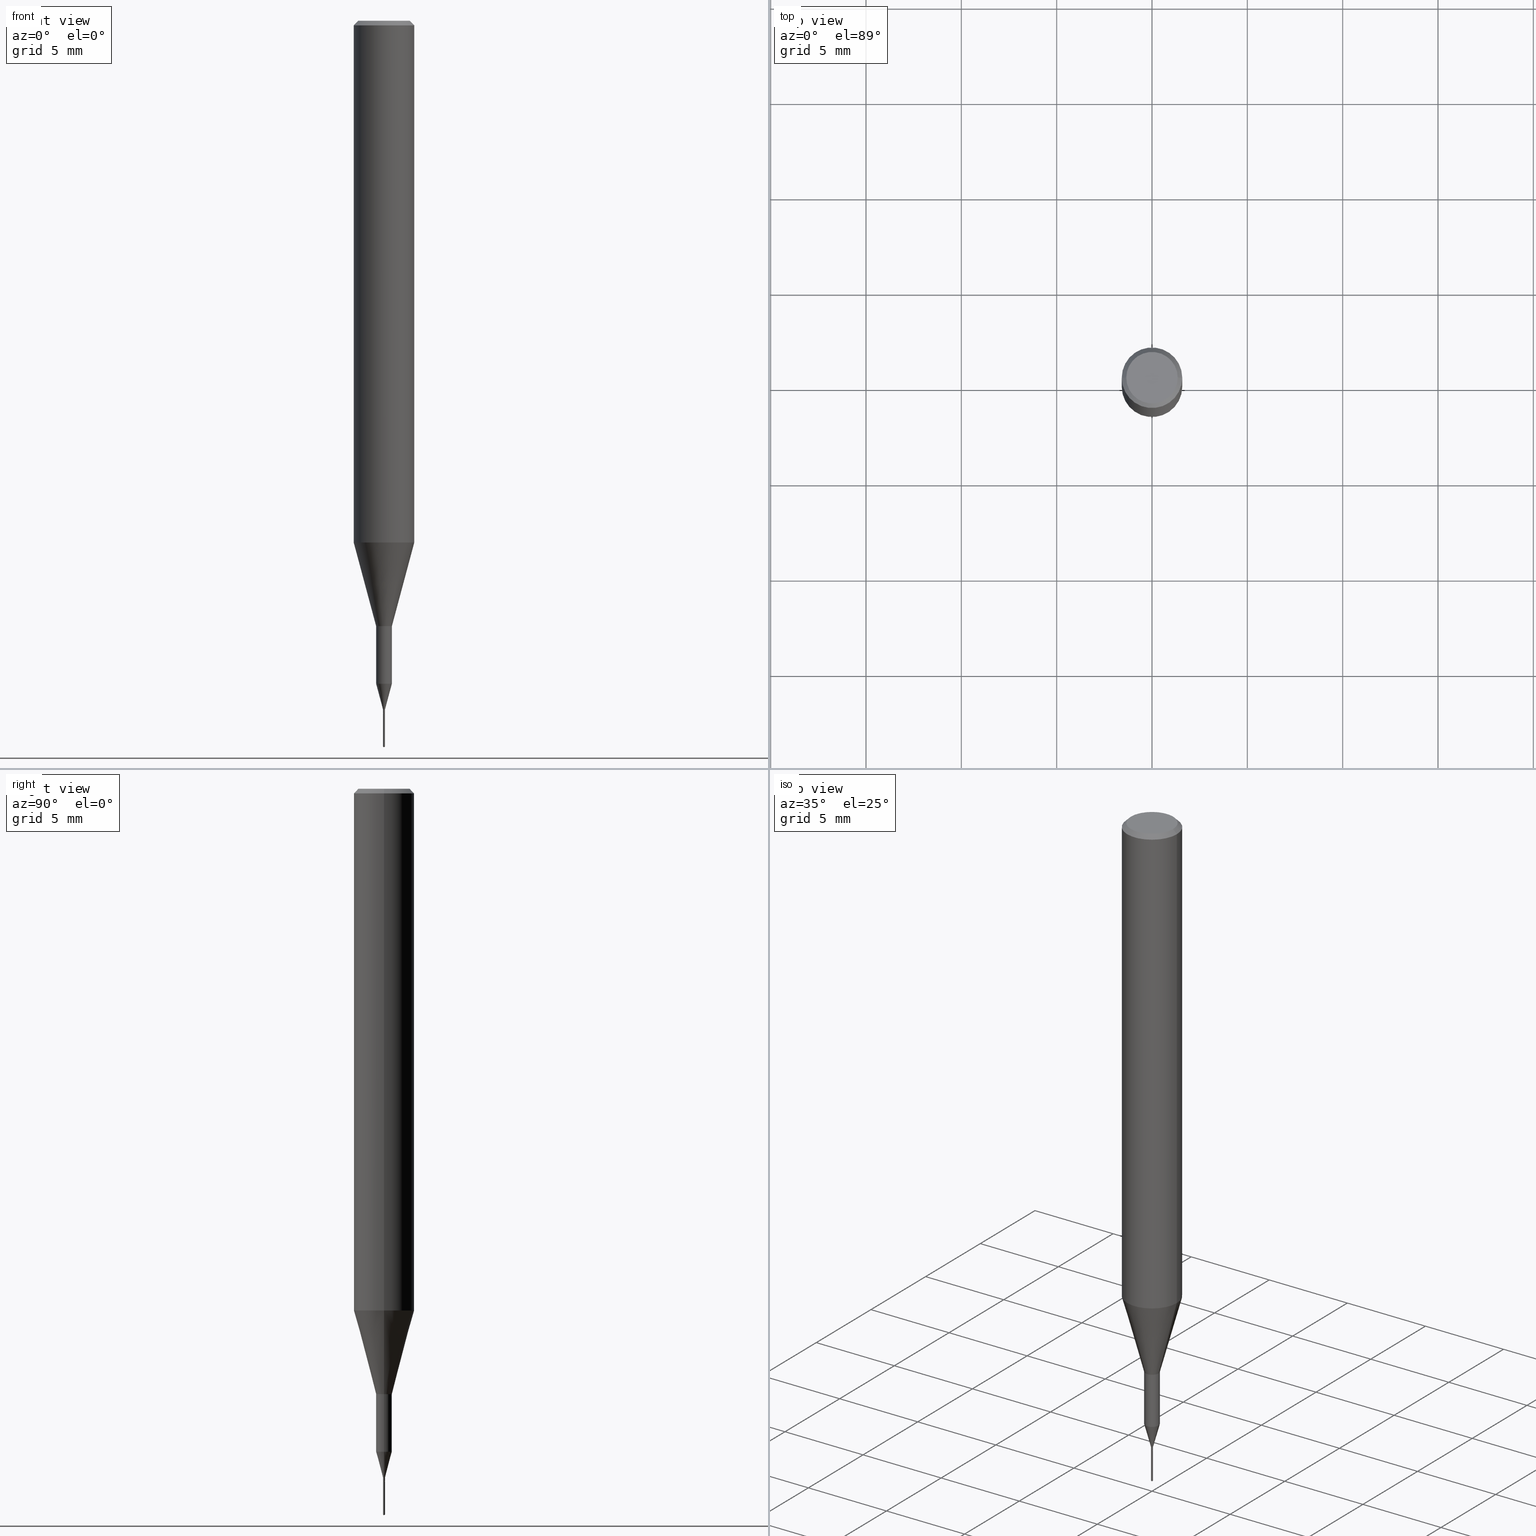
[diagram: canonical four-view strip — front | top / right | iso, engineering-drawing reading convention]
A machine part, canonical four-view strip (front | top / right | iso — engineering-drawing reading convention). The complete STEP part file that produces these views, byte-faithful:
ISO-10303-21;
HEADER;
FILE_DESCRIPTION (( 'STEP AP203' ),
    '1' );
FILE_NAME ('07089.STEP',
    '2024-04-19T13:29:48',
    ( '' ),
    ( '' ),
    'SwSTEP 2.0',
    'SolidWorks 2023',
    '' );
FILE_SCHEMA (( 'CONFIG_CONTROL_DESIGN' ));
ENDSEC;

DATA;
#1 = DIRECTION ( 'NONE',  ( -2.454811314498300339E-29, 3.478102335196144573E-15, 1.000000000000000000 ) ) ;
#2 = ORIENTED_EDGE ( 'NONE', *, *, #450, .T. ) ;
#3 = PRODUCT_DEFINITION_SHAPE ( 'NONE', 'NONE',  #389 ) ;
#4 = DIRECTION ( 'NONE',  ( -2.438088387897960049E-29, 3.491481338843145188E-15, 1.000000000000000000 ) ) ;
#5 = CC_DESIGN_PERSON_AND_ORGANIZATION_ASSIGNMENT ( #254, #439, ( #141 ) ) ;
#6 = AXIS2_PLACEMENT_3D ( 'NONE', #244, #431, #204 ) ;
#7 =( LENGTH_UNIT ( ) NAMED_UNIT ( * ) SI_UNIT ( $, .METRE. ) );
#8 = CARTESIAN_POINT ( 'NONE',  ( -0.06250000000000012490, -3.317607122755211895E-15, -1.077392650149939346 ) ) ;
#9 = DIRECTION ( 'NONE',  ( 1.000000000000000000, -6.982962677686264344E-15, 0.000000000000000000 ) ) ;
#10 = CARTESIAN_POINT ( 'NONE',  ( 0.06250000000000000000, -4.615137624123753937E-16, -0.009375000000000062103 ) ) ;
#11 = DIRECTION ( 'NONE',  ( 1.000000000000000000, -6.982962677686264344E-15, 0.000000000000000000 ) ) ;
#12 = EDGE_LOOP ( 'NONE', ( #330, #466, #83, #78 ) ) ;
#13 = CALENDAR_DATE ( 2024, 19, 4 ) ;
#14 = FACE_OUTER_BOUND ( 'NONE', #38, .T. ) ;
#15 = ORIENTED_EDGE ( 'NONE', *, *, #85, .T. ) ;
#16 = DIRECTION ( 'NONE',  ( -2.454811314498300339E-29, 3.478102335196144573E-15, 1.000000000000000000 ) ) ;
#17 = CARTESIAN_POINT ( 'NONE',  ( -0.001500000000000000248, -4.979510946335185892E-15, -1.429999999999999938 ) ) ;
#18 = ADVANCED_FACE ( 'NONE', ( #14 ), #345, .T. ) ;
#19 = CARTESIAN_POINT ( 'NONE',  ( 0.000000000000000000, 0.000000000000000000, 0.000000000000000000 ) ) ;
#20 = SHAPE_DEFINITION_REPRESENTATION ( #3, #574 ) ;
#21 = AXIS2_PLACEMENT_3D ( 'NONE', #155, #587, #548 ) ;
#22 = DIRECTION ( 'NONE',  ( -2.454811314498300339E-29, 3.478102335196144573E-15, 1.000000000000000000 ) ) ;
#23 = CC_DESIGN_PERSON_AND_ORGANIZATION_ASSIGNMENT ( #299, #482, ( #253 ) ) ;
#24 = VERTEX_POINT ( 'NONE', #202 ) ;
#25 = CIRCLE ( 'NONE', #201, 0.001999999999999996572 ) ;
#26 = FACE_OUTER_BOUND ( 'NONE', #220, .T. ) ;
#27 = EDGE_CURVE ( 'NONE', #487, #317, #205, .T. ) ;
#28 = EDGE_CURVE ( 'NONE', #24, #549, #569, .T. ) ;
#29 = LOCAL_TIME ( 9, 29, 48.00000000000000000, #116 ) ;
#30 = LINE ( 'NONE', #564, #223 ) ;
#31 = ORIENTED_EDGE ( 'NONE', *, *, #585, .F. ) ;
#32 = ORIENTED_EDGE ( 'NONE', *, *, #397, .T. ) ;
#33 = ORIENTED_EDGE ( 'NONE', *, *, #222, .T. ) ;
#34 = AXIS2_PLACEMENT_3D ( 'NONE', #480, #66, #560 ) ;
#35 = DIRECTION ( 'NONE',  ( -2.445468806185136597E-29, 3.491481338843145583E-15, 1.000000000000000000 ) ) ;
#36 = EDGE_LOOP ( 'NONE', ( #142, #250, #2, #350 ) ) ;
#37 = ADVANCED_FACE ( 'NONE', ( #53 ), #110, .T. ) ;
#38 = EDGE_LOOP ( 'NONE', ( #409, #33, #165, #256 ) ) ;
#39 = MANIFOLD_SOLID_BREP ( 'Body-Move/Copy2[2]', #232 ) ;
#40 = AXIS2_PLACEMENT_3D ( 'NONE', #43, #462, #581 ) ;
#41 = ORIENTED_EDGE ( 'NONE', *, *, #64, .F. ) ;
#42 = CIRCLE ( 'NONE', #100, 0.06250000000000000000 ) ;
#43 = CARTESIAN_POINT ( 'NONE',  ( 0.000000000000000000, 0.000000000000000000, 0.000000000000000000 ) ) ;
#44 = CARTESIAN_POINT ( 'NONE',  ( 2.634730117954813298E-29, -3.761696332605275695E-15, -1.077392650149939346 ) ) ;
#45 = DIRECTION ( 'NONE',  ( -6.982962677686266711E-15, -1.000000000000000000, 0.000000000000000000 ) ) ;
#46 = EDGE_CURVE ( 'NONE', #228, #395, #358, .T. ) ;
#47 = AXIS2_PLACEMENT_3D ( 'NONE', #309, #35, #268 ) ;
#48 = ORIENTED_EDGE ( 'NONE', *, *, #266, .F. ) ;
#49 = CYLINDRICAL_SURFACE ( 'NONE', #238, 0.01624999999999999709 ) ;
#50 = DIRECTION ( 'NONE',  ( -2.445468806185136597E-29, 3.491481338843145583E-15, 1.000000000000000000 ) ) ;
#51 = CIRCLE ( 'NONE', #399, 0.01624999999999999709 ) ;
#52 = CARTESIAN_POINT ( 'NONE',  ( 3.347402395274904675E-29, -4.779203466894016579E-15, -1.368818275992143674 ) ) ;
#53 = FACE_OUTER_BOUND ( 'NONE', #130, .T. ) ;
#54 = CARTESIAN_POINT ( 'NONE',  ( 3.056836007731421306E-29, -4.364351673553932471E-15, -1.250000000000000000 ) ) ;
#55 = APPROVAL ( #270, 'UNSPECIFIED' ) ;
#56 = DIRECTION ( 'NONE',  ( 1.000000000000000000, -6.982962677686264344E-15, 0.000000000000000000 ) ) ;
#57 = DIRECTION ( 'NONE',  ( 2.445468806185136597E-29, -3.491481338843145583E-15, -1.000000000000000000 ) ) ;
#58 = CARTESIAN_POINT ( 'NONE',  ( 2.634730117954813298E-29, -3.761696332605275695E-15, -1.077392650149939346 ) ) ;
#59 = MECHANICAL_CONTEXT ( 'NONE', #307, 'mechanical' ) ;
#60 = ORIENTED_EDGE ( 'NONE', *, *, #356, .T. ) ;
#61 = DIRECTION ( 'NONE',  ( 1.000000000000000000, -6.982962677686007964E-15, 0.000000000000000000 ) ) ;
#62 = CARTESIAN_POINT ( 'NONE',  ( 3.497020392844745759E-29, -4.992818314545698211E-15, -1.429999999999999938 ) ) ;
#63 = CIRCLE ( 'NONE', #540, 0.002000000000000006113 ) ;
#64 = EDGE_CURVE ( 'NONE', #395, #317, #425, .T. ) ;
#65 = PERSON_AND_ORGANIZATION ( #323, #196 ) ;
#66 = DIRECTION ( 'NONE',  ( -2.445468806185136597E-29, 3.491481338843145583E-15, 1.000000000000000000 ) ) ;
#67 = DIRECTION ( 'NONE',  ( -2.445468806185136597E-29, 3.491481338843145583E-15, 1.000000000000000000 ) ) ;
#68 = ORIENTED_EDGE ( 'NONE', *, *, #585, .T. ) ;
#69 = CIRCLE ( 'NONE', #166, 0.01625000000000000056 ) ;
#70 = DIRECTION ( 'NONE',  ( 1.000000000000000000, -6.982962677686344808E-15, 0.000000000000000000 ) ) ;
#71 = SECURITY_CLASSIFICATION_LEVEL ( 'unclassified' ) ;
#72 = VECTOR ( 'NONE', #153, 39.37007874015748143 ) ;
#73 = AXIS2_PLACEMENT_3D ( 'NONE', #272, #129, #458 ) ;
#74 = PERSON_AND_ORGANIZATION ( #323, #196 ) ;
#75 = EDGE_CURVE ( 'NONE', #126, #383, #212, .T. ) ;
#76 = VECTOR ( 'NONE', #372, 39.37007874015748143 ) ;
#77 = EDGE_LOOP ( 'NONE', ( #68, #284, #226, #502 ) ) ;
#78 = ORIENTED_EDGE ( 'NONE', *, *, #356, .F. ) ;
#79 = ADVANCED_FACE ( 'NONE', ( #490 ), #444, .F. ) ;
#80 = PRODUCT ( '07089', '07089', '', ( #59 ) ) ;
#81 = ORIENTED_EDGE ( 'NONE', *, *, #125, .F. ) ;
#82 =( GEOMETRIC_REPRESENTATION_CONTEXT ( 3 ) GLOBAL_UNCERTAINTY_ASSIGNED_CONTEXT ( ( #382 ) ) GLOBAL_UNIT_ASSIGNED_CONTEXT ( ( #412, #318, #92 ) ) REPRESENTATION_CONTEXT ( 'NONE', 'WORKASPACE' ) );
#83 = ORIENTED_EDGE ( 'NONE', *, *, #570, .F. ) ;
#84 = AXIS2_PLACEMENT_3D ( 'NONE', #504, #95, #279 ) ;
#85 = EDGE_CURVE ( 'NONE', #24, #156, #30, .T. ) ;
#86 = DESIGN_CONTEXT ( 'detailed design', #468, 'design' ) ;
#87 = EDGE_LOOP ( 'NONE', ( #467, #234, #340, #500 ) ) ;
#88 = FACE_OUTER_BOUND ( 'NONE', #263, .T. ) ;
#89 = COORDINATED_UNIVERSAL_TIME_OFFSET ( 5, 0, .BEHIND. ) ;
#90 = CARTESIAN_POINT ( 'NONE',  ( 3.347402395274904675E-29, -4.779203466894016579E-15, -1.368818275992143674 ) ) ;
#91 = DIRECTION ( 'NONE',  ( -2.454811314498300339E-29, 3.478102335196144573E-15, 1.000000000000000000 ) ) ;
#92 =( NAMED_UNIT ( * ) SI_UNIT ( $, .STERADIAN. ) SOLID_ANGLE_UNIT ( ) );
#93 = EDGE_LOOP ( 'NONE', ( #580, #181 ) ) ;
#94 = CARTESIAN_POINT ( 'NONE',  ( -0.002000000000000006113, -4.963768664140413020E-15, -1.421999999999999709 ) ) ;
#95 = DIRECTION ( 'NONE',  ( -2.445468806185136597E-29, 3.491481338843145583E-15, 1.000000000000000000 ) ) ;
#96 = LOCAL_TIME ( 9, 29, 48.00000000000000000, #162 ) ;
#97 = DIRECTION ( 'NONE',  ( 1.000000000000000000, -6.982962677686266711E-15, 4.876176775795935232E-29 ) ) ;
#98 = DIRECTION ( 'NONE',  ( -2.445468806185136597E-29, 3.491481338843145583E-15, 1.000000000000000000 ) ) ;
#99 = CARTESIAN_POINT ( 'NONE',  ( 3.682216971747450929E-29, -5.217153502794216465E-15, -1.500000000000000222 ) ) ;
#100 = AXIS2_PLACEMENT_3D ( 'NONE', #140, #554, #329 ) ;
#101 = CARTESIAN_POINT ( 'NONE',  ( 3.497020392844745759E-29, -4.992818314545698211E-15, -1.429999999999999938 ) ) ;
#102 = CARTESIAN_POINT ( 'NONE',  ( 3.497020392844745759E-29, -4.992818314545698211E-15, -1.429999999999999938 ) ) ;
#103 = DIRECTION ( 'NONE',  ( 0.000000000000000000, 0.000000000000000000, 1.000000000000000000 ) ) ;
#104 = DIRECTION ( 'NONE',  ( 1.000000000000000000, -6.982962677686311676E-15, 0.000000000000000000 ) ) ;
#105 = ORIENTED_EDGE ( 'NONE', *, *, #163, .F. ) ;
#106 = DIRECTION ( 'NONE',  ( -0.7071067811866161845, 7.493145998870601862E-15, 0.7071067811864788499 ) ) ;
#107 = CONICAL_SURFACE ( 'NONE', #376, 0.01625000000000000056, 0.2617993877991514617 ) ;
#108 = CARTESIAN_POINT ( 'NONE',  ( 0.06250000000000000000, -4.691678049070463404E-16, -0.009375000000000062103 ) ) ;
#109 = CC_DESIGN_DATE_AND_TIME_ASSIGNMENT ( #257, #486, ( #141 ) ) ;
#110 = CONICAL_SURFACE ( 'NONE', #274, 0.06250000000000012490, 0.2617993877991501295 ) ;
#111 = EDGE_CURVE ( 'NONE', #549, #362, #158, .T. ) ;
#112 = ORIENTED_EDGE ( 'NONE', *, *, #497, .T. ) ;
#113 = APPROVAL_STATUS ( 'not_yet_approved' ) ;
#114 = AXIS2_PLACEMENT_3D ( 'NONE', #185, #505, #104 ) ;
#115 = EDGE_CURVE ( 'NONE', #265, #126, #354, .T. ) ;
#116 = COORDINATED_UNIVERSAL_TIME_OFFSET ( 5, 0, .BEHIND. ) ;
#117 = CIRCLE ( 'NONE', #188, 0.001999999999999999174 ) ;
#118 = EDGE_CURVE ( 'NONE', #362, #156, #51, .T. ) ;
#119 = CARTESIAN_POINT ( 'NONE',  ( 1.421085471523696966E-17, 0.001999999999995006640, -1.429999999999999938 ) ) ;
#120 = DIRECTION ( 'NONE',  ( -2.454811314498300339E-29, 3.478102335196144573E-15, 1.000000000000000000 ) ) ;
#121 = ORIENTED_EDGE ( 'NONE', *, *, #154, .F. ) ;
#122 = DIRECTION ( 'NONE',  ( 1.000000000000000000, -6.982962677686288799E-15, 0.000000000000000000 ) ) ;
#123 = DATE_AND_TIME ( #528, #583 ) ;
#124 = AXIS2_PLACEMENT_3D ( 'NONE', #62, #435, #159 ) ;
#125 = EDGE_CURVE ( 'NONE', #228, #363, #258, .T. ) ;
#126 = VERTEX_POINT ( 'NONE', #481 ) ;
#127 = CONICAL_SURFACE ( 'NONE', #136, 0.06250000000000000000, 0.7853981633974453924 ) ;
#128 = ORIENTED_EDGE ( 'NONE', *, *, #578, .F. ) ;
#129 = DIRECTION ( 'NONE',  ( -2.445468806185136597E-29, 3.491481338843145583E-15, 1.000000000000000000 ) ) ;
#130 = EDGE_LOOP ( 'NONE', ( #251, #180, #128, #529 ) ) ;
#131 = ADVANCED_FACE ( 'NONE', ( #26 ), #252, .T. ) ;
#132 = DIRECTION ( 'NONE',  ( -2.445468806185136877E-29, 3.491481338843145188E-15, 1.000000000000000000 ) ) ;
#133 = CC_DESIGN_APPROVAL ( #230, ( #389 ) ) ;
#134 = VERTEX_POINT ( 'NONE', #281 ) ;
#135 = LINE ( 'NONE', #267, #537 ) ;
#136 = AXIS2_PLACEMENT_3D ( 'NONE', #227, #57, #283 ) ;
#137 = ORIENTED_EDGE ( 'NONE', *, *, #288, .F. ) ;
#138 = DIRECTION ( 'NONE',  ( -2.445468806185136597E-29, 3.491481338843145583E-15, 1.000000000000000000 ) ) ;
#139 = DIRECTION ( 'NONE',  ( 0.7071067811866161845, -2.468850131082976107E-15, 0.7071067811864788499 ) ) ;
#140 = CARTESIAN_POINT ( 'NONE',  ( 2.292627005798580623E-31, -3.273263755165470801E-17, -0.009375000000000062103 ) ) ;
#141 = SECURITY_CLASSIFICATION ( '', '', #71 ) ;
#142 = ORIENTED_EDGE ( 'NONE', *, *, #484, .F. ) ;
#143 = DIRECTION ( 'NONE',  ( -2.445468806185136597E-29, 3.491481338843145583E-15, 1.000000000000000000 ) ) ;
#144 = DIRECTION ( 'NONE',  ( 1.000000000000000000, -6.982962677686288799E-15, 0.000000000000000000 ) ) ;
#145 = CARTESIAN_POINT ( 'NONE',  ( -1.396592535533755903E-17, -0.002000000000004992576, -1.429999999999999938 ) ) ;
#146 = PERSON_AND_ORGANIZATION ( #323, #196 ) ;
#147 = AXIS2_PLACEMENT_3D ( 'NONE', #191, #542, #465 ) ;
#148 = VECTOR ( 'NONE', #275, 39.37007874015747433 ) ;
#149 = EDGE_LOOP ( 'NONE', ( #316, #280, #229 ) ) ;
#150 = LINE ( 'NONE', #411, #169 ) ;
#151 = DIRECTION ( 'NONE',  ( 1.000000000000000000, -6.982962677686265922E-15, 4.876176775795935793E-29 ) ) ;
#152 = APPROVAL_STATUS ( 'not_yet_approved' ) ;
#153 = DIRECTION ( 'NONE',  ( 0.7071067811865454633, -7.319954787623248157E-15, -0.7071067811865495711 ) ) ;
#154 = EDGE_CURVE ( 'NONE', #544, #126, #429, .T. ) ;
#155 = CARTESIAN_POINT ( 'NONE',  ( 0.000000000000000000, 0.000000000000000000, 0.000000000000000000 ) ) ;
#156 = VERTEX_POINT ( 'NONE', #415 ) ;
#157 = CARTESIAN_POINT ( 'NONE',  ( 0.05312499999999999861, -4.129888592719939842E-16, -5.787680772767651417E-18 ) ) ;
#158 = LINE ( 'NONE', #398, #320 ) ;
#159 = DIRECTION ( 'NONE',  ( -6.982962677686265133E-15, -1.000000000000000000, 0.000000000000000000 ) ) ;
#160 = ORIENTED_EDGE ( 'NONE', *, *, #179, .T. ) ;
#161 = CIRCLE ( 'NONE', #313, 0.01624999999999999709 ) ;
#162 = COORDINATED_UNIVERSAL_TIME_OFFSET ( 5, 0, .BEHIND. ) ;
#163 = EDGE_CURVE ( 'NONE', #392, #246, #292, .T. ) ;
#164 = ORIENTED_EDGE ( 'NONE', *, *, #452, .T. ) ;
#165 = ORIENTED_EDGE ( 'NONE', *, *, #432, .T. ) ;
#166 = AXIS2_PLACEMENT_3D ( 'NONE', #90, #328, #334 ) ;
#167 = DIRECTION ( 'NONE',  ( 2.454811314498300058E-29, -3.478102335196144573E-15, -1.000000000000000000 ) ) ;
#168 = CARTESIAN_POINT ( 'NONE',  ( 3.497020392844745759E-29, -4.992818314545698211E-15, -1.429999999999999938 ) ) ;
#169 = VECTOR ( 'NONE', #368, 39.37007874015748143 ) ;
#170 = DIRECTION ( 'NONE',  ( 6.090539988449920430E-15, 0.8571673007021338719, 0.5150380749100181843 ) ) ;
#171 = DIRECTION ( 'NONE',  ( -6.982962677686265133E-15, -1.000000000000000000, 0.000000000000000000 ) ) ;
#172 = ADVANCED_FACE ( 'NONE', ( #335 ), #127, .T. ) ;
#173 = EDGE_CURVE ( 'NONE', #156, #134, #584, .T. ) ;
#174 = ORIENTED_EDGE ( 'NONE', *, *, #222, .F. ) ;
#175 = APPROVAL_PERSON_ORGANIZATION ( #74, #55, #499 ) ;
#176 = DIRECTION ( 'NONE',  ( 1.000000000000000000, -6.982962677686267499E-15, 4.876176775795936353E-29 ) ) ;
#177 = EDGE_LOOP ( 'NONE', ( #428, #295, #121 ) ) ;
#178 = CIRCLE ( 'NONE', #526, 0.001999999999999996572 ) ;
#179 = EDGE_CURVE ( 'NONE', #291, #366, #187, .T. ) ;
#180 = ORIENTED_EDGE ( 'NONE', *, *, #173, .T. ) ;
#181 = ORIENTED_EDGE ( 'NONE', *, *, #511, .T. ) ;
#182 = DIRECTION ( 'NONE',  ( -2.445468806185136597E-29, 3.491481338843145583E-15, 1.000000000000000000 ) ) ;
#183 = FACE_OUTER_BOUND ( 'NONE', #314, .T. ) ;
#184 = LOCAL_TIME ( 9, 29, 48.00000000000000000, #473 ) ;
#185 = CARTESIAN_POINT ( 'NONE',  ( 3.477456642395263738E-29, -4.964886463834952576E-15, -1.421999999999999709 ) ) ;
#186 = FACE_OUTER_BOUND ( 'NONE', #87, .T. ) ;
#187 = LINE ( 'NONE', #582, #76 ) ;
#188 = AXIS2_PLACEMENT_3D ( 'NONE', #471, #421, #507 ) ;
#189 = ADVANCED_FACE ( 'NONE', ( #589 ), #321, .F. ) ;
#190 = DIRECTION ( 'NONE',  ( 1.000000000000000000, -6.982962677686007964E-15, 0.000000000000000000 ) ) ;
#191 = CARTESIAN_POINT ( 'NONE',  ( 7.076796394983739835E-47, -1.010378970665454992E-32, -2.893840386385196200E-18 ) ) ;
#192 = ORIENTED_EDGE ( 'NONE', *, *, #111, .F. ) ;
#193 = DIRECTION ( 'NONE',  ( 1.000000000000000000, -6.982962677686258033E-15, 0.000000000000000000 ) ) ;
#194 = DIRECTION ( 'NONE',  ( -6.982962677686267499E-15, -1.000000000000000000, 3.468864327941292475E-15 ) ) ;
#195 = ORIENTED_EDGE ( 'NONE', *, *, #218, .F. ) ;
#196 = ORGANIZATION ( 'UNSPECIFIED', 'UNSPECIFIED', '' ) ;
#197 = LINE ( 'NONE', #145, #224 ) ;
#198 = DIRECTION ( 'NONE',  ( 1.000000000000000000, -6.982962677686344808E-15, 0.000000000000000000 ) ) ;
#199 = ORIENTED_EDGE ( 'NONE', *, *, #240, .T. ) ;
#200 = APPLICATION_PROTOCOL_DEFINITION ( 'international standard', 'config_control_design', 1994, #468 ) ;
#201 = AXIS2_PLACEMENT_3D ( 'NONE', #463, #50, #198 ) ;
#202 = CARTESIAN_POINT ( 'NONE',  ( -0.01625000000000000056, -4.663740272333000394E-15, -1.368818275992143674 ) ) ;
#203 = CC_DESIGN_PERSON_AND_ORGANIZATION_ASSIGNMENT ( #146, #513, ( #389 ) ) ;
#204 = DIRECTION ( 'NONE',  ( 1.000000000000000000, -6.982962677686266711E-15, 4.876176775795935232E-29 ) ) ;
#205 = LINE ( 'NONE', #339, #562 ) ;
#206 = LINE ( 'NONE', #387, #576 ) ;
#207 = COORDINATED_UNIVERSAL_TIME_OFFSET ( 5, 0, .BEHIND. ) ;
#208 = CARTESIAN_POINT ( 'NONE',  ( 2.634730117954813298E-29, -3.761696332605275695E-15, -1.077392650149939346 ) ) ;
#209 = DIRECTION ( 'NONE',  ( -6.982962677686266711E-15, -1.000000000000000000, 0.000000000000000000 ) ) ;
#210 = VECTOR ( 'NONE', #442, 39.37007874015748143 ) ;
#211 = DATE_TIME_ROLE ( 'creation_date' ) ;
#212 = LINE ( 'NONE', #119, #441 ) ;
#213 = APPROVAL_PERSON_ORGANIZATION ( #437, #394, #477 ) ;
#214 = ORIENTED_EDGE ( 'NONE', *, *, #269, .F. ) ;
#215 = DIRECTION ( 'NONE',  ( -2.445468806185136877E-29, 3.491481338843145188E-15, 1.000000000000000000 ) ) ;
#216 = CONICAL_SURFACE ( 'NONE', #520, 0.06250000000000000000, 0.7853981633974453924 ) ;
#217 = CC_DESIGN_DATE_AND_TIME_ASSIGNMENT ( #479, #211, ( #389 ) ) ;
#218 = EDGE_CURVE ( 'NONE', #392, #485, #417, .T. ) ;
#219 = CARTESIAN_POINT ( 'NONE',  ( 0.001999999999999996572, -5.005038499231649525E-15, -1.429500000000000215 ) ) ;
#220 = EDGE_LOOP ( 'NONE', ( #496, #448, #378, #271 ) ) ;
#221 = ORIENTED_EDGE ( 'NONE', *, *, #111, .T. ) ;
#222 = EDGE_CURVE ( 'NONE', #156, #362, #161, .T. ) ;
#223 = VECTOR ( 'NONE', #215, 39.37007874015748143 ) ;
#224 = VECTOR ( 'NONE', #472, 39.37007874015748143 ) ;
#225 = CARTESIAN_POINT ( 'NONE',  ( 3.497020392844745759E-29, -4.992818314545698211E-15, -1.429999999999999938 ) ) ;
#226 = ORIENTED_EDGE ( 'NONE', *, *, #452, .F. ) ;
#227 = CARTESIAN_POINT ( 'NONE',  ( 2.292627005798580623E-31, -3.273263755165470801E-17, -0.009375000000000062103 ) ) ;
#228 = VERTEX_POINT ( 'NONE', #235 ) ;
#229 = ORIENTED_EDGE ( 'NONE', *, *, #240, .F. ) ;
#230 = APPROVAL ( #152, 'UNSPECIFIED' ) ;
#231 = CARTESIAN_POINT ( 'NONE',  ( -0.001500000000000000248, -4.982160173509296304E-15, -1.429999999999999938 ) ) ;
#232 = CLOSED_SHELL ( 'NONE', ( #172, #530, #37, #434, #543, #553, #408, #355, #535, #516, #565, #449, #18, #131, #278, #189 ) ) ;
#233 = CYLINDRICAL_SURFACE ( 'NONE', #491, 0.002000000000000001343 ) ;
#234 = ORIENTED_EDGE ( 'NONE', *, *, #163, .T. ) ;
#235 = CARTESIAN_POINT ( 'NONE',  ( -0.05312499999999999861, 3.873362110279099094E-16, -5.787680772773044021E-18 ) ) ;
#236 = EDGE_LOOP ( 'NONE', ( #577, #32, #416, #293 ) ) ;
#237 = CARTESIAN_POINT ( 'NONE',  ( 3.497020392844745759E-29, -4.992818314545698211E-15, -1.429999999999999938 ) ) ;
#238 = AXIS2_PLACEMENT_3D ( 'NONE', #367, #503, #176 ) ;
#239 = DIRECTION ( 'NONE',  ( -2.445468806185136597E-29, 3.491481338843145583E-15, 1.000000000000000000 ) ) ;
#240 = EDGE_CURVE ( 'NONE', #126, #544, #117, .T. ) ;
#241 = ORIENTED_EDGE ( 'NONE', *, *, #346, .F. ) ;
#242 = ADVANCED_FACE ( 'NONE', ( #476 ), #286, .T. ) ;
#243 = FACE_OUTER_BOUND ( 'NONE', #351, .T. ) ;
#244 = CARTESIAN_POINT ( 'NONE',  ( 0.000000000000000000, 0.000000000000000000, 0.000000000000000000 ) ) ;
#245 = EDGE_LOOP ( 'NONE', ( #164, #15, #420, #192 ) ) ;
#246 = VERTEX_POINT ( 'NONE', #424 ) ;
#247 = CARTESIAN_POINT ( 'NONE',  ( -1.396592535533756211E-17, -0.002000000000004993009, -1.429999999999999938 ) ) ;
#248 = LINE ( 'NONE', #303, #461 ) ;
#249 = DIRECTION ( 'NONE',  ( -5.985567269336080119E-15, -0.8571673007021302082, 0.5150380749100241795 ) ) ;
#250 = ORIENTED_EDGE ( 'NONE', *, *, #288, .T. ) ;
#251 = ORIENTED_EDGE ( 'NONE', *, *, #118, .T. ) ;
#252 = CYLINDRICAL_SURFACE ( 'NONE', #84, 0.06250000000000006939 ) ;
#253 = PRODUCT_DEFINITION_FORMATION_WITH_SPECIFIED_SOURCE ( 'ANY', '', #80, .NOT_KNOWN. ) ;
#254 = PERSON_AND_ORGANIZATION ( #323, #196 ) ;
#255 = CONICAL_SURFACE ( 'NONE', #370, 65.52281426577413015, 1.029744258676692947 ) ;
#256 = ORIENTED_EDGE ( 'NONE', *, *, #369, .F. ) ;
#257 = DATE_AND_TIME ( #302, #29 ) ;
#258 = LINE ( 'NONE', #298, #210 ) ;
#259 = CYLINDRICAL_SURFACE ( 'NONE', #558, 0.001999999999999999608 ) ;
#260 = ORIENTED_EDGE ( 'NONE', *, *, #511, .F. ) ;
#261 = EDGE_CURVE ( 'NONE', #291, #246, #25, .T. ) ;
#262 = LOCAL_TIME ( 9, 29, 48.00000000000000000, #207 ) ;
#263 = EDGE_LOOP ( 'NONE', ( #319, #515, #31, #534 ) ) ;
#264 = EDGE_CURVE ( 'NONE', #363, #317, #42, .T. ) ;
#265 = VERTEX_POINT ( 'NONE', #99 ) ;
#266 = EDGE_CURVE ( 'NONE', #246, #406, #150, .T. ) ;
#267 = CARTESIAN_POINT ( 'NONE',  ( 0.01625000000000000056, -4.892676610406418256E-15, -1.368818275992143674 ) ) ;
#268 = DIRECTION ( 'NONE',  ( 1.000000000000000000, -6.982962677686266711E-15, 0.000000000000000000 ) ) ;
#269 = EDGE_CURVE ( 'NONE', #246, #291, #178, .T. ) ;
#270 = APPROVAL_STATUS ( 'not_yet_approved' ) ;
#271 = ORIENTED_EDGE ( 'NONE', *, *, #264, .F. ) ;
#272 = CARTESIAN_POINT ( 'NONE',  ( 3.497020392844745759E-29, -4.992818314545698211E-15, -1.429999999999999938 ) ) ;
#273 = ORIENTED_EDGE ( 'NONE', *, *, #85, .F. ) ;
#274 = AXIS2_PLACEMENT_3D ( 'NONE', #338, #551, #290 ) ;
#275 = DIRECTION ( 'NONE',  ( 0.2588190451025214611, 1.565188264969621573E-15, 0.9659258262890682012 ) ) ;
#276 = EDGE_LOOP ( 'NONE', ( #41, #401, #455, #523 ) ) ;
#277 = EDGE_LOOP ( 'NONE', ( #451, #483 ) ) ;
#278 = ADVANCED_FACE ( 'NONE', ( #310 ), #216, .T. ) ;
#279 = DIRECTION ( 'NONE',  ( 1.000000000000000000, -6.982962677686266711E-15, 4.876176775795935793E-29 ) ) ;
#280 = ORIENTED_EDGE ( 'NONE', *, *, #324, .T. ) ;
#281 = CARTESIAN_POINT ( 'NONE',  ( -0.06250000000000012490, -3.317607122755211895E-15, -1.077392650149939346 ) ) ;
#282 = CIRCLE ( 'NONE', #573, 0.05312499999999999861 ) ;
#283 = DIRECTION ( 'NONE',  ( -1.000000000000000000, 6.982962677686266711E-15, 0.000000000000000000 ) ) ;
#284 = ORIENTED_EDGE ( 'NONE', *, *, #484, .T. ) ;
#285 = DIRECTION ( 'NONE',  ( -2.445468806185136597E-29, 3.491481338843145583E-15, 1.000000000000000000 ) ) ;
#286 = CONICAL_SURFACE ( 'NONE', #552, 65.52281426577413015, 1.029744258676692947 ) ;
#287 = DIRECTION ( 'NONE',  ( -2.454811314498300339E-29, 3.478102335196144573E-15, 1.000000000000000000 ) ) ;
#288 = EDGE_CURVE ( 'NONE', #406, #366, #63, .T. ) ;
#289 = CARTESIAN_POINT ( 'NONE',  ( -0.06250000000000000000, -1.453125275228401137E-15, -0.009375000000000062103 ) ) ;
#290 = DIRECTION ( 'NONE',  ( 1.000000000000000000, -6.982962677686264344E-15, 0.000000000000000000 ) ) ;
#291 = VERTEX_POINT ( 'NONE', #219 ) ;
#292 = LINE ( 'NONE', #231, #453 ) ;
#293 = ORIENTED_EDGE ( 'NONE', *, *, #27, .F. ) ;
#294 = APPROVAL_PERSON_ORGANIZATION ( #65, #230, #563 ) ;
#295 = ORIENTED_EDGE ( 'NONE', *, *, #115, .T. ) ;
#296 = CYLINDRICAL_SURFACE ( 'NONE', #124, 0.001999999999999999608 ) ;
#297 = DIRECTION ( 'NONE',  ( -6.982962677686267499E-15, -1.000000000000000000, 3.468864327941292475E-15 ) ) ;
#298 = CARTESIAN_POINT ( 'NONE',  ( -0.06250000000000000000, 4.037025298037369984E-16, -0.009375000000000062103 ) ) ;
#299 = PERSON_AND_ORGANIZATION ( #323, #196 ) ;
#300 = DIRECTION ( 'NONE',  ( -2.454811314498300619E-29, 3.478102335196144573E-15, 1.000000000000000000 ) ) ;
#301 = EDGE_LOOP ( 'NONE', ( #568, #199, #60, #536 ) ) ;
#302 = CALENDAR_DATE ( 2024, 19, 4 ) ;
#303 = CARTESIAN_POINT ( 'NONE',  ( -0.01625000000000000056, -4.663740272333000394E-15, -1.368818275992143674 ) ) ;
#304 = AXIS2_PLACEMENT_3D ( 'NONE', #225, #138, #325 ) ;
#305 = CIRCLE ( 'NONE', #489, 0.06250000000000012490 ) ;
#306 = CC_DESIGN_PERSON_AND_ORGANIZATION_ASSIGNMENT ( #381, #393, ( #80 ) ) ;
#307 = APPLICATION_CONTEXT ( 'configuration controlled 3d designs of mechanical parts and assemblies' ) ;
#308 = CARTESIAN_POINT ( 'NONE',  ( 3.497020392844745759E-29, -4.992818314545698211E-15, -1.429999999999999938 ) ) ;
#309 = CARTESIAN_POINT ( 'NONE',  ( 2.292627005798580623E-31, -3.273263755165470801E-17, -0.009375000000000062103 ) ) ;
#310 = FACE_OUTER_BOUND ( 'NONE', #276, .T. ) ;
#311 = CALENDAR_DATE ( 2024, 19, 4 ) ;
#312 = DIRECTION ( 'NONE',  ( 1.000000000000000000, -6.982962677686311676E-15, 0.000000000000000000 ) ) ;
#313 = AXIS2_PLACEMENT_3D ( 'NONE', #54, #374, #144 ) ;
#314 = EDGE_LOOP ( 'NONE', ( #273, #460, #221, #174 ) ) ;
#315 = LINE ( 'NONE', #371, #148 ) ;
#316 = ORIENTED_EDGE ( 'NONE', *, *, #115, .F. ) ;
#317 = VERTEX_POINT ( 'NONE', #108 ) ;
#318 =( NAMED_UNIT ( * ) PLANE_ANGLE_UNIT ( ) SI_UNIT ( $, .RADIAN. ) );
#319 = ORIENTED_EDGE ( 'NONE', *, *, #261, .T. ) ;
#320 = VECTOR ( 'NONE', #571, 39.37007874015748143 ) ;
#321 = PLANE ( 'NONE',  #147 ) ;
#322 = ADVANCED_FACE ( 'NONE', ( #400 ), #255, .T. ) ;
#323 = PERSON ( 'UNSPECIFIED', 'UNSPECIFIED', 'UNSPECIFIED', ('UNSPECIFIED'), ('UNSPECIFIED'), ('UNSPECIFIED') ) ;
#324 = EDGE_CURVE ( 'NONE', #265, #544, #206, .T. ) ;
#325 = DIRECTION ( 'NONE',  ( 1.000000000000000000, -6.982962677686007964E-15, 0.000000000000000000 ) ) ;
#326 = FACE_OUTER_BOUND ( 'NONE', #36, .T. ) ;
#327 = CONICAL_SURFACE ( 'NONE', #532, 0.01625000000000000056, 0.2617993877991514617 ) ;
#328 = DIRECTION ( 'NONE',  ( -2.445468806185136597E-29, 3.491481338843145583E-15, 1.000000000000000000 ) ) ;
#329 = DIRECTION ( 'NONE',  ( 1.000000000000000000, -6.982962677686266711E-15, 0.000000000000000000 ) ) ;
#330 = ORIENTED_EDGE ( 'NONE', *, *, #154, .T. ) ;
#331 = CARTESIAN_POINT ( 'NONE',  ( 0.01624999999999999709, -4.477824817066334148E-15, -1.250000000000000000 ) ) ;
#332 = CIRCLE ( 'NONE', #575, 0.001500000000000000248 ) ;
#333 = CARTESIAN_POINT ( 'NONE',  ( -1.396592535533586729E-17, -0.002000000000005231100, -1.498798278761945157 ) ) ;
#334 = DIRECTION ( 'NONE',  ( 1.000000000000000000, -6.982962677686258033E-15, 0.000000000000000000 ) ) ;
#335 = FACE_OUTER_BOUND ( 'NONE', #377, .T. ) ;
#336 = CARTESIAN_POINT ( 'NONE',  ( 1.421085471523866756E-17, 0.001999999999995007507, -1.429999999999999938 ) ) ;
#337 = FACE_OUTER_BOUND ( 'NONE', #301, .T. ) ;
#338 = CARTESIAN_POINT ( 'NONE',  ( 2.634730117954813298E-29, -3.761696332605275695E-15, -1.077392650149939346 ) ) ;
#339 = CARTESIAN_POINT ( 'NONE',  ( 0.06250000000000006939, -4.364351673553921624E-16, 3.047610484872463374E-30 ) ) ;
#340 = ORIENTED_EDGE ( 'NONE', *, *, #261, .F. ) ;
#341 = APPROVAL_DATE_TIME ( #559, #394 ) ;
#342 = LINE ( 'NONE', #521, #454 ) ;
#343 = DIRECTION ( 'NONE',  ( 1.000000000000000000, 0.000000000000000000, 0.000000000000000000 ) ) ;
#344 = CARTESIAN_POINT ( 'NONE',  ( 3.682451270869537857E-29, -5.217153502794216465E-15, -1.500000000000000222 ) ) ;
#345 = CONICAL_SURFACE ( 'NONE', #533, 0.06250000000000012490, 0.2617993877991501295 ) ;
#346 = EDGE_CURVE ( 'NONE', #485, #392, #332, .T. ) ;
#347 = CARTESIAN_POINT ( 'NONE',  ( 1.415359278996747967E-46, -2.020757941330909984E-32, -5.787680772770392401E-18 ) ) ;
#348 = DIRECTION ( 'NONE',  ( -2.445468806185136597E-29, 3.491481338843145583E-15, 1.000000000000000000 ) ) ;
#349 = DATE_AND_TIME ( #517, #96 ) ;
#350 = ORIENTED_EDGE ( 'NONE', *, *, #28, .F. ) ;
#351 = EDGE_LOOP ( 'NONE', ( #241, #195 ) ) ;
#352 = PERSON_AND_ORGANIZATION ( #323, #196 ) ;
#353 = CIRCLE ( 'NONE', #390, 0.002000000000000000042 ) ;
#354 = LINE ( 'NONE', #344, #379 ) ;
#355 = ADVANCED_FACE ( 'NONE', ( #243 ), #422, .F. ) ;
#356 = EDGE_CURVE ( 'NONE', #544, #388, #197, .T. ) ;
#357 = CARTESIAN_POINT ( 'NONE',  ( 0.001500000000000000248, -5.003292758562227232E-15, -1.429999999999999938 ) ) ;
#358 = CIRCLE ( 'NONE', #34, 0.05312499999999999861 ) ;
#359 = DIRECTION ( 'NONE',  ( -2.445468806185136597E-29, 3.491481338843145583E-15, 1.000000000000000000 ) ) ;
#360 = DIRECTION ( 'NONE',  ( -1.000000000000000000, 6.982962677686266711E-15, 0.000000000000000000 ) ) ;
#361 = DIRECTION ( 'NONE',  ( 0.2588190451025226824, 1.565188264969610726E-15, 0.9659258262890676461 ) ) ;
#362 = VERTEX_POINT ( 'NONE', #331 ) ;
#363 = VERTEX_POINT ( 'NONE', #289 ) ;
#364 = LENGTH_MEASURE_WITH_UNIT ( LENGTH_MEASURE( 0.02539999999999999897 ), #7 );
#365 = CONICAL_SURFACE ( 'NONE', #524, 0.001500000000000000248, 0.7853981633975454235 ) ;
#366 = VERTEX_POINT ( 'NONE', #430 ) ;
#367 = CARTESIAN_POINT ( 'NONE',  ( 0.000000000000000000, 0.000000000000000000, 0.000000000000000000 ) ) ;
#368 = DIRECTION ( 'NONE',  ( -2.445468806185136877E-29, 3.491481338843145188E-15, 1.000000000000000000 ) ) ;
#369 = EDGE_CURVE ( 'NONE', #134, #487, #305, .T. ) ;
#370 = AXIS2_PLACEMENT_3D ( 'NONE', #556, #16, #297 ) ;
#371 = CARTESIAN_POINT ( 'NONE',  ( 0.06250000000000012490, -4.198131499960668153E-15, -1.077392650149939346 ) ) ;
#372 = DIRECTION ( 'NONE',  ( -2.445468806185136877E-29, 3.491481338843145188E-15, 1.000000000000000000 ) ) ;
#373 = DIRECTION ( 'NONE',  ( 1.000000000000000000, -6.982962677686258033E-15, 0.000000000000000000 ) ) ;
#374 = DIRECTION ( 'NONE',  ( -2.445468806185136597E-29, 3.491481338843145583E-15, 1.000000000000000000 ) ) ;
#375 = LINE ( 'NONE', #590, #519 ) ;
#376 = AXIS2_PLACEMENT_3D ( 'NONE', #52, #474, #373 ) ;
#377 = EDGE_LOOP ( 'NONE', ( #260, #501, #112, #81 ) ) ;
#378 = ORIENTED_EDGE ( 'NONE', *, *, #27, .T. ) ;
#379 = VECTOR ( 'NONE', #170, 39.37007874015748854 ) ;
#380 = AXIS2_PLACEMENT_3D ( 'NONE', #102, #4, #151 ) ;
#381 = PERSON_AND_ORGANIZATION ( #323, #196 ) ;
#382 = UNCERTAINTY_MEASURE_WITH_UNIT (LENGTH_MEASURE( 1.000000000000000082E-05 ), #412, 'distance_accuracy_value', 'NONE');
#383 = VERTEX_POINT ( 'NONE', #336 ) ;
#384 = DIRECTION ( 'NONE',  ( 2.445468806185136597E-29, -3.491481338843145583E-15, -1.000000000000000000 ) ) ;
#385 = PERSON_AND_ORGANIZATION_ROLE ( 'design_supplier' ) ;
#386 = CYLINDRICAL_SURFACE ( 'NONE', #21, 0.06250000000000006939 ) ;
#387 = CARTESIAN_POINT ( 'NONE',  ( 3.655497397971803125E-29, -5.255417453224639518E-15, -1.500000000000000222 ) ) ;
#388 = VERTEX_POINT ( 'NONE', #247 ) ;
#389 = PRODUCT_DEFINITION ( 'UNKNOWN', '', #253, #86 ) ;
#390 = AXIS2_PLACEMENT_3D ( 'NONE', #101, #287, #579 ) ;
#391 = CARTESIAN_POINT ( 'NONE',  ( 3.497020392844745759E-29, -4.992818314545698211E-15, -1.429999999999999938 ) ) ;
#392 = VERTEX_POINT ( 'NONE', #17 ) ;
#393 = PERSON_AND_ORGANIZATION_ROLE ( 'design_owner' ) ;
#394 = APPROVAL ( #113, 'UNSPECIFIED' ) ;
#395 = VERTEX_POINT ( 'NONE', #157 ) ;
#396 = AXIS2_PLACEMENT_3D ( 'NONE', #19, #103, #343 ) ;
#397 = EDGE_CURVE ( 'NONE', #134, #363, #342, .T. ) ;
#398 = CARTESIAN_POINT ( 'NONE',  ( 0.01624999999999999709, -1.134731435124018242E-16, 7.923787260668394963E-31 ) ) ;
#399 = AXIS2_PLACEMENT_3D ( 'NONE', #525, #359, #122 ) ;
#400 = FACE_OUTER_BOUND ( 'NONE', #149, .T. ) ;
#401 = ORIENTED_EDGE ( 'NONE', *, *, #46, .F. ) ;
#402 = CC_DESIGN_PERSON_AND_ORGANIZATION_ASSIGNMENT ( #352, #385, ( #253 ) ) ;
#403 = FACE_OUTER_BOUND ( 'NONE', #12, .T. ) ;
#404 = CIRCLE ( 'NONE', #114, 0.002000000000000006113 ) ;
#405 = AXIS2_PLACEMENT_3D ( 'NONE', #512, #91, #45 ) ;
#406 = VERTEX_POINT ( 'NONE', #94 ) ;
#407 = CONICAL_SURFACE ( 'NONE', #73, 0.001500000000000000248, 0.7853981633975454235 ) ;
#408 = ADVANCED_FACE ( 'NONE', ( #186 ), #407, .T. ) ;
#409 = ORIENTED_EDGE ( 'NONE', *, *, #173, .F. ) ;
#410 = FACE_OUTER_BOUND ( 'NONE', #245, .T. ) ;
#411 = CARTESIAN_POINT ( 'NONE',  ( -0.002000000000000001343, 1.421085471520201326E-17, -9.837870180509817143E-32 ) ) ;
#412 =( CONVERSION_BASED_UNIT ( 'INCH', #364 ) LENGTH_UNIT ( ) NAMED_UNIT ( #495 ) );
#413 = EDGE_LOOP ( 'NONE', ( #105, #538, #506, #214 ) ) ;
#414 = CC_DESIGN_APPROVAL ( #55, ( #141 ) ) ;
#415 = CARTESIAN_POINT ( 'NONE',  ( -0.01624999999999999709, -4.456314375662958734E-15, -1.250000000000000000 ) ) ;
#416 = ORIENTED_EDGE ( 'NONE', *, *, #497, .F. ) ;
#417 = CIRCLE ( 'NONE', #304, 0.001500000000000000248 ) ;
#418 = DIRECTION ( 'NONE',  ( -0.2588190451025214611, 5.211531920934551042E-15, 0.9659258262890682012 ) ) ;
#419 = FACE_OUTER_BOUND ( 'NONE', #77, .T. ) ;
#420 = ORIENTED_EDGE ( 'NONE', *, *, #118, .F. ) ;
#421 = DIRECTION ( 'NONE',  ( -2.454811314498300339E-29, 3.478102335196144573E-15, 1.000000000000000000 ) ) ;
#422 = PLANE ( 'NONE',  #380 ) ;
#423 = APPLICATION_PROTOCOL_DEFINITION ( 'international standard', 'config_control_design', 1994, #307 ) ;
#424 = CARTESIAN_POINT ( 'NONE',  ( -0.001999999999999996572, -4.976861719161074691E-15, -1.429500000000000215 ) ) ;
#425 = LINE ( 'NONE', #10, #72 ) ;
#426 = DIRECTION ( 'NONE',  ( 1.000000000000000000, -6.982962677686266711E-15, 4.875930095424100059E-29 ) ) ;
#427 = DIRECTION ( 'NONE',  ( -2.445468806185136597E-29, 3.491481338843145583E-15, 1.000000000000000000 ) ) ;
#428 = ORIENTED_EDGE ( 'NONE', *, *, #324, .F. ) ;
#429 = CIRCLE ( 'NONE', #405, 0.001999999999999999174 ) ;
#430 = CARTESIAN_POINT ( 'NONE',  ( 0.002000000000000006113, -4.978852389190325393E-15, -1.421999999999999709 ) ) ;
#431 = DIRECTION ( 'NONE',  ( -2.445468806185136597E-29, 3.491481338843145583E-15, 1.000000000000000000 ) ) ;
#432 = EDGE_CURVE ( 'NONE', #362, #487, #315, .T. ) ;
#433 = CARTESIAN_POINT ( 'NONE',  ( 2.292627005798580623E-31, -3.273263755165470801E-17, -0.009375000000000062103 ) ) ;
#434 = ADVANCED_FACE ( 'NONE', ( #410 ), #456, .T. ) ;
#435 = DIRECTION ( 'NONE',  ( -2.454811314498300339E-29, 3.478102335196144573E-15, 1.000000000000000000 ) ) ;
#436 = DIRECTION ( 'NONE',  ( -2.445468806185136877E-29, 3.491481338843145188E-15, 1.000000000000000000 ) ) ;
#437 = PERSON_AND_ORGANIZATION ( #323, #196 ) ;
#438 = CC_DESIGN_SECURITY_CLASSIFICATION ( #141, ( #253 ) ) ;
#439 = PERSON_AND_ORGANIZATION_ROLE ( 'classification_officer' ) ;
#440 = DIRECTION ( 'NONE',  ( 6.982962677686265922E-15, 1.000000000000000000, -3.478102335196144573E-15 ) ) ;
#441 = VECTOR ( 'NONE', #300, 39.37007874015748143 ) ;
#442 = DIRECTION ( 'NONE',  ( -0.7071067811865454633, 2.468850131082235367E-15, -0.7071067811865495711 ) ) ;
#443 = AXIS2_PLACEMENT_3D ( 'NONE', #44, #469, #56 ) ;
#444 = PLANE ( 'NONE',  #586 ) ;
#445 = MANIFOLD_SOLID_BREP ( 'Body-Move/Copy2[1]', #488 ) ;
#446 = VECTOR ( 'NONE', #418, 39.37007874015747433 ) ;
#447 = CARTESIAN_POINT ( 'NONE',  ( 3.477456642395263738E-29, -4.964886463834952576E-15, -1.421999999999999709 ) ) ;
#448 = ORIENTED_EDGE ( 'NONE', *, *, #369, .T. ) ;
#449 = ADVANCED_FACE ( 'NONE', ( #183 ), #49, .T. ) ;
#450 = EDGE_CURVE ( 'NONE', #366, #549, #135, .T. ) ;
#451 = ORIENTED_EDGE ( 'NONE', *, *, #570, .T. ) ;
#452 = EDGE_CURVE ( 'NONE', #549, #24, #69, .T. ) ;
#453 = VECTOR ( 'NONE', #106, 39.37007874015748143 ) ;
#454 = VECTOR ( 'NONE', #132, 39.37007874015748143 ) ;
#455 = ORIENTED_EDGE ( 'NONE', *, *, #125, .T. ) ;
#456 = CYLINDRICAL_SURFACE ( 'NONE', #40, 0.01624999999999999709 ) ;
#457 = CARTESIAN_POINT ( 'NONE',  ( 0.01625000000000000056, -4.892676610406418256E-15, -1.368818275992143674 ) ) ;
#458 = DIRECTION ( 'NONE',  ( 1.000000000000000000, -6.982962677686007964E-15, 0.000000000000000000 ) ) ;
#459 = FACE_OUTER_BOUND ( 'NONE', #413, .T. ) ;
#460 = ORIENTED_EDGE ( 'NONE', *, *, #28, .T. ) ;
#461 = VECTOR ( 'NONE', #572, 39.37007874015748854 ) ;
#462 = DIRECTION ( 'NONE',  ( -2.445468806185136597E-29, 3.491481338843145583E-15, 1.000000000000000000 ) ) ;
#463 = CARTESIAN_POINT ( 'NONE',  ( 3.495797658441652958E-29, -4.991072573876277496E-15, -1.429500000000000215 ) ) ;
#464 = DIRECTION ( 'NONE',  ( 1.000000000000000000, -6.982962677686258033E-15, 0.000000000000000000 ) ) ;
#465 = DIRECTION ( 'NONE',  ( -1.000000000000000000, 6.982962677686265922E-15, -4.876176775795935793E-29 ) ) ;
#466 = ORIENTED_EDGE ( 'NONE', *, *, #75, .T. ) ;
#467 = ORIENTED_EDGE ( 'NONE', *, *, #346, .T. ) ;
#468 = APPLICATION_CONTEXT ( 'configuration controlled 3d designs of mechanical parts and assemblies' ) ;
#469 = DIRECTION ( 'NONE',  ( -2.445468806185136597E-29, 3.491481338843145583E-15, 1.000000000000000000 ) ) ;
#470 = EDGE_LOOP ( 'NONE', ( #48, #588, #160, #137 ) ) ;
#471 = CARTESIAN_POINT ( 'NONE',  ( 3.665907185967576397E-29, -5.232105768565094855E-15, -1.498798278761945157 ) ) ;
#472 = DIRECTION ( 'NONE',  ( -2.454811314498300619E-29, 3.478102335196144573E-15, 1.000000000000000000 ) ) ;
#473 = COORDINATED_UNIVERSAL_TIME_OFFSET ( 5, 0, .BEHIND. ) ;
#474 = DIRECTION ( 'NONE',  ( -2.445468806185136597E-29, 3.491481338843145583E-15, 1.000000000000000000 ) ) ;
#475 = CC_DESIGN_APPROVAL ( #394, ( #253 ) ) ;
#476 = FACE_OUTER_BOUND ( 'NONE', #177, .T. ) ;
#477 = APPROVAL_ROLE ( '' ) ;
#478 = EDGE_CURVE ( 'NONE', #383, #388, #547, .T. ) ;
#479 = DATE_AND_TIME ( #311, #184 ) ;
#480 = CARTESIAN_POINT ( 'NONE',  ( 1.415359278996747967E-46, -2.020757941330909984E-32, -5.787680772770392401E-18 ) ) ;
#481 = CARTESIAN_POINT ( 'NONE',  ( 1.421085471523865523E-17, 0.001999999999994766815, -1.498798278761945157 ) ) ;
#482 = PERSON_AND_ORGANIZATION_ROLE ( 'creator' ) ;
#483 = ORIENTED_EDGE ( 'NONE', *, *, #478, .T. ) ;
#484 = EDGE_CURVE ( 'NONE', #406, #24, #248, .T. ) ;
#485 = VERTEX_POINT ( 'NONE', #357 ) ;
#486 = DATE_TIME_ROLE ( 'classification_date' ) ;
#487 = VERTEX_POINT ( 'NONE', #527 ) ;
#488 = CLOSED_SHELL ( 'NONE', ( #493, #242, #322, #509, #79 ) ) ;
#489 = AXIS2_PLACEMENT_3D ( 'NONE', #58, #239, #9 ) ;
#490 = FACE_OUTER_BOUND ( 'NONE', #277, .T. ) ;
#491 = AXIS2_PLACEMENT_3D ( 'NONE', #541, #514, #97 ) ;
#492 = APPROVAL_DATE_TIME ( #123, #55 ) ;
#493 = ADVANCED_FACE ( 'NONE', ( #403 ), #259, .T. ) ;
#494 = AXIS2_PLACEMENT_3D ( 'NONE', #545, #98, #464 ) ;
#495 = DIMENSIONAL_EXPONENTS ( 1.000000000000000000, 0.000000000000000000, 0.000000000000000000, 0.000000000000000000, 0.000000000000000000, 0.000000000000000000, 0.000000000000000000 ) ;
#496 = ORIENTED_EDGE ( 'NONE', *, *, #397, .F. ) ;
#497 = EDGE_CURVE ( 'NONE', #317, #363, #510, .T. ) ;
#498 = CIRCLE ( 'NONE', #443, 0.06250000000000012490 ) ;
#499 = APPROVAL_ROLE ( '' ) ;
#500 = ORIENTED_EDGE ( 'NONE', *, *, #561, .F. ) ;
#501 = ORIENTED_EDGE ( 'NONE', *, *, #64, .T. ) ;
#502 = ORIENTED_EDGE ( 'NONE', *, *, #450, .F. ) ;
#503 = DIRECTION ( 'NONE',  ( -2.445468806185136597E-29, 3.491481338843145583E-15, 1.000000000000000000 ) ) ;
#504 = CARTESIAN_POINT ( 'NONE',  ( 0.000000000000000000, 0.000000000000000000, 0.000000000000000000 ) ) ;
#505 = DIRECTION ( 'NONE',  ( -2.445468806185136597E-29, 3.491481338843145583E-15, 1.000000000000000000 ) ) ;
#506 = ORIENTED_EDGE ( 'NONE', *, *, #561, .T. ) ;
#507 = DIRECTION ( 'NONE',  ( -6.982962677686266711E-15, -1.000000000000000000, 0.000000000000000000 ) ) ;
#508 = CARTESIAN_POINT ( 'NONE',  ( 3.347402395274904675E-29, -4.779203466894016579E-15, -1.368818275992143674 ) ) ;
#509 = ADVANCED_FACE ( 'NONE', ( #337 ), #296, .T. ) ;
#510 = CIRCLE ( 'NONE', #47, 0.06250000000000000000 ) ;
#511 = EDGE_CURVE ( 'NONE', #395, #228, #282, .T. ) ;
#512 = CARTESIAN_POINT ( 'NONE',  ( 3.665907185967576397E-29, -5.232105768565094855E-15, -1.498798278761945157 ) ) ;
#513 = PERSON_AND_ORGANIZATION_ROLE ( 'creator' ) ;
#514 = DIRECTION ( 'NONE',  ( -2.445468806185136597E-29, 3.491481338843145583E-15, 1.000000000000000000 ) ) ;
#515 = ORIENTED_EDGE ( 'NONE', *, *, #266, .T. ) ;
#516 = ADVANCED_FACE ( 'NONE', ( #555 ), #518, .T. ) ;
#517 = CALENDAR_DATE ( 2024, 19, 4 ) ;
#518 = CYLINDRICAL_SURFACE ( 'NONE', #6, 0.002000000000000001343 ) ;
#519 = VECTOR ( 'NONE', #139, 39.37007874015748143 ) ;
#520 = AXIS2_PLACEMENT_3D ( 'NONE', #433, #384, #360 ) ;
#521 = CARTESIAN_POINT ( 'NONE',  ( -0.06250000000000006939, 4.440892098500631092E-16, -3.074334431409319267E-30 ) ) ;
#522 = CARTESIAN_POINT ( 'NONE',  ( 3.497020392844745759E-29, -4.992818314545698211E-15, -1.429999999999999938 ) ) ;
#523 = ORIENTED_EDGE ( 'NONE', *, *, #264, .T. ) ;
#524 = AXIS2_PLACEMENT_3D ( 'NONE', #237, #182, #190 ) ;
#525 = CARTESIAN_POINT ( 'NONE',  ( 3.056836007731421306E-29, -4.364351673553932471E-15, -1.250000000000000000 ) ) ;
#526 = AXIS2_PLACEMENT_3D ( 'NONE', #539, #531, #70 ) ;
#527 = CARTESIAN_POINT ( 'NONE',  ( 0.06250000000000012490, -4.198131499960668153E-15, -1.077392650149939346 ) ) ;
#528 = CALENDAR_DATE ( 2024, 19, 4 ) ;
#529 = ORIENTED_EDGE ( 'NONE', *, *, #432, .F. ) ;
#530 = ADVANCED_FACE ( 'NONE', ( #557 ), #386, .T. ) ;
#531 = DIRECTION ( 'NONE',  ( -2.445468806185136597E-29, 3.491481338843145583E-15, 1.000000000000000000 ) ) ;
#532 = AXIS2_PLACEMENT_3D ( 'NONE', #508, #143, #193 ) ;
#533 = AXIS2_PLACEMENT_3D ( 'NONE', #208, #427, #11 ) ;
#534 = ORIENTED_EDGE ( 'NONE', *, *, #179, .F. ) ;
#535 = ADVANCED_FACE ( 'NONE', ( #459 ), #365, .T. ) ;
#536 = ORIENTED_EDGE ( 'NONE', *, *, #478, .F. ) ;
#537 = VECTOR ( 'NONE', #361, 39.37007874015748854 ) ;
#538 = ORIENTED_EDGE ( 'NONE', *, *, #218, .T. ) ;
#539 = CARTESIAN_POINT ( 'NONE',  ( 3.495797658441652958E-29, -4.991072573876277496E-15, -1.429500000000000215 ) ) ;
#540 = AXIS2_PLACEMENT_3D ( 'NONE', #447, #348, #312 ) ;
#541 = CARTESIAN_POINT ( 'NONE',  ( 0.000000000000000000, 0.000000000000000000, 0.000000000000000000 ) ) ;
#542 = DIRECTION ( 'NONE',  ( 2.438088387897960049E-29, -3.491481338843145188E-15, -1.000000000000000000 ) ) ;
#543 = ADVANCED_FACE ( 'NONE', ( #419 ), #107, .T. ) ;
#544 = VERTEX_POINT ( 'NONE', #333 ) ;
#545 = CARTESIAN_POINT ( 'NONE',  ( 3.347402395274904675E-29, -4.779203466894016579E-15, -1.368818275992143674 ) ) ;
#546 = CARTESIAN_POINT ( 'NONE',  ( -9.297725755916794344E-28, 1.316968773249883876E-13, 37.87007874015748143 ) ) ;
#547 = CIRCLE ( 'NONE', #566, 0.002000000000000000042 ) ;
#548 = DIRECTION ( 'NONE',  ( 1.000000000000000000, -6.982962677686266711E-15, 4.876176775795935793E-29 ) ) ;
#549 = VERTEX_POINT ( 'NONE', #457 ) ;
#550 = APPROVAL_DATE_TIME ( #349, #230 ) ;
#551 = DIRECTION ( 'NONE',  ( -2.445468806185136597E-29, 3.491481338843145583E-15, 1.000000000000000000 ) ) ;
#552 = AXIS2_PLACEMENT_3D ( 'NONE', #546, #1, #194 ) ;
#553 = ADVANCED_FACE ( 'NONE', ( #88 ), #233, .T. ) ;
#554 = DIRECTION ( 'NONE',  ( -2.445468806185136597E-29, 3.491481338843145583E-15, 1.000000000000000000 ) ) ;
#555 = FACE_OUTER_BOUND ( 'NONE', #470, .T. ) ;
#556 = CARTESIAN_POINT ( 'NONE',  ( -9.297725755916794344E-28, 1.316968773249883876E-13, 37.87007874015748143 ) ) ;
#557 = FACE_OUTER_BOUND ( 'NONE', #236, .T. ) ;
#558 = AXIS2_PLACEMENT_3D ( 'NONE', #168, #120, #171 ) ;
#559 = DATE_AND_TIME ( #13, #262 ) ;
#560 = DIRECTION ( 'NONE',  ( 1.000000000000000000, -6.982962677686266711E-15, 4.875930095424100059E-29 ) ) ;
#561 = EDGE_CURVE ( 'NONE', #485, #291, #375, .T. ) ;
#562 = VECTOR ( 'NONE', #436, 39.37007874015748143 ) ;
#563 = APPROVAL_ROLE ( '' ) ;
#564 = CARTESIAN_POINT ( 'NONE',  ( -0.01624999999999999709, 1.154631945610162595E-16, -7.993269521664220284E-31 ) ) ;
#565 = ADVANCED_FACE ( 'NONE', ( #326 ), #327, .T. ) ;
#566 = AXIS2_PLACEMENT_3D ( 'NONE', #391, #22, #209 ) ;
#567 = PRODUCT_RELATED_PRODUCT_CATEGORY ( 'detail', '', ( #80 ) ) ;
#568 = ORIENTED_EDGE ( 'NONE', *, *, #75, .F. ) ;
#569 = CIRCLE ( 'NONE', #494, 0.01625000000000000056 ) ;
#570 = EDGE_CURVE ( 'NONE', #388, #383, #353, .T. ) ;
#571 = DIRECTION ( 'NONE',  ( -2.445468806185136877E-29, 3.491481338843145188E-15, 1.000000000000000000 ) ) ;
#572 = DIRECTION ( 'NONE',  ( -0.2588190451025226824, 5.211531920934557353E-15, 0.9659258262890676461 ) ) ;
#573 = AXIS2_PLACEMENT_3D ( 'NONE', #347, #67, #426 ) ;
#574 = ADVANCED_BREP_SHAPE_REPRESENTATION ( '07089', ( #445, #39, #396 ), #82 ) ;
#575 = AXIS2_PLACEMENT_3D ( 'NONE', #522, #285, #61 ) ;
#576 = VECTOR ( 'NONE', #249, 39.37007874015748854 ) ;
#577 = ORIENTED_EDGE ( 'NONE', *, *, #578, .T. ) ;
#578 = EDGE_CURVE ( 'NONE', #487, #134, #498, .T. ) ;
#579 = DIRECTION ( 'NONE',  ( -6.982962677686266711E-15, -1.000000000000000000, 0.000000000000000000 ) ) ;
#580 = ORIENTED_EDGE ( 'NONE', *, *, #46, .T. ) ;
#581 = DIRECTION ( 'NONE',  ( 1.000000000000000000, -6.982962677686267499E-15, 4.876176775795936353E-29 ) ) ;
#582 = CARTESIAN_POINT ( 'NONE',  ( 0.002000000000000001343, -1.396592535537254316E-17, 9.752353551591876972E-32 ) ) ;
#583 = LOCAL_TIME ( 9, 29, 48.00000000000000000, #89 ) ;
#584 = LINE ( 'NONE', #8, #446 ) ;
#585 = EDGE_CURVE ( 'NONE', #366, #406, #404, .T. ) ;
#586 = AXIS2_PLACEMENT_3D ( 'NONE', #308, #167, #440 ) ;
#587 = DIRECTION ( 'NONE',  ( -2.445468806185136597E-29, 3.491481338843145583E-15, 1.000000000000000000 ) ) ;
#588 = ORIENTED_EDGE ( 'NONE', *, *, #269, .T. ) ;
#589 = FACE_OUTER_BOUND ( 'NONE', #93, .T. ) ;
#590 = CARTESIAN_POINT ( 'NONE',  ( 0.001500000000000000248, -5.003292758562227232E-15, -1.429999999999999938 ) ) ;
ENDSEC;
END-ISO-10303-21;
